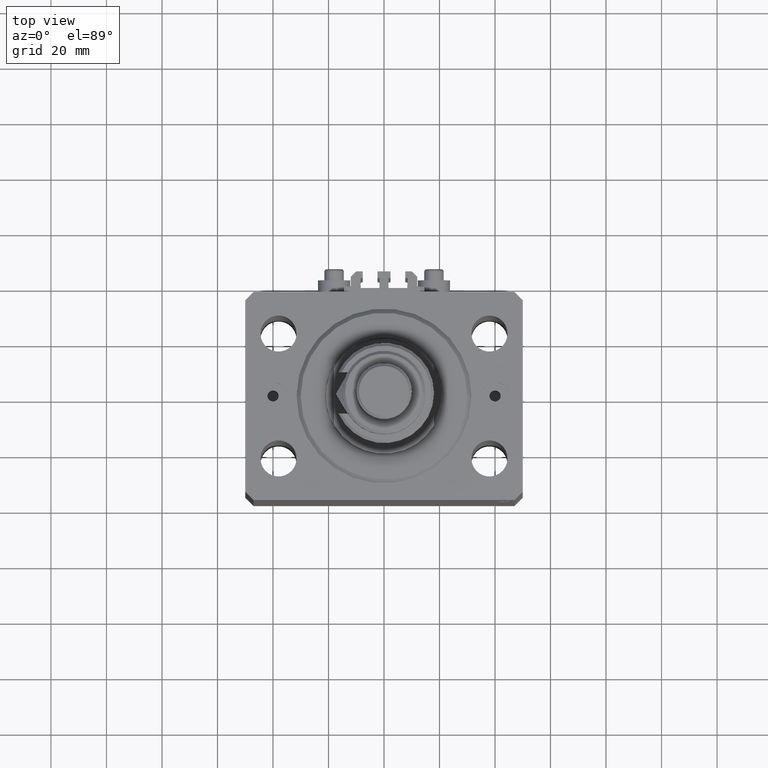
[diagram: clean part render]
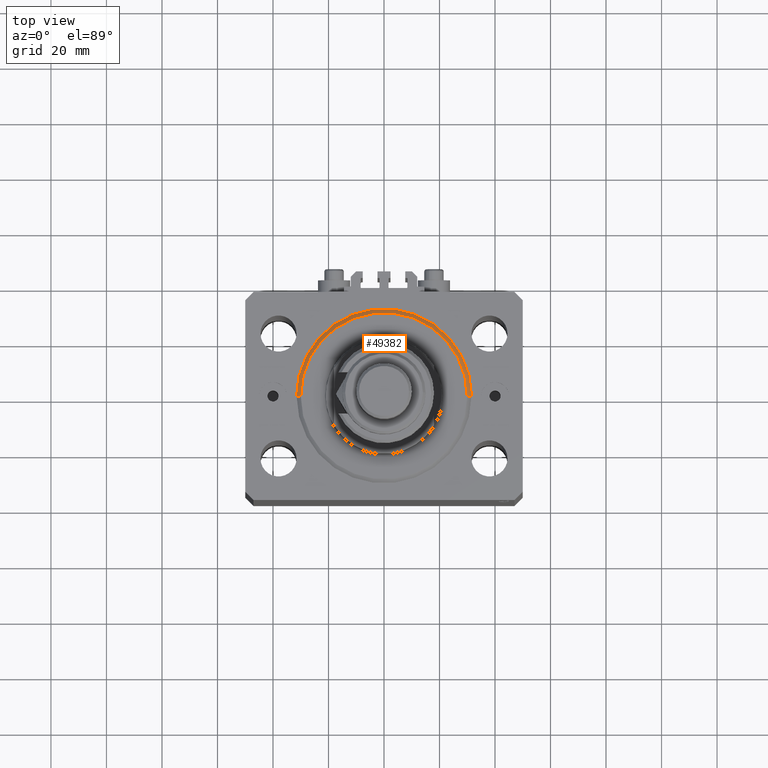
[diagram: same view with one face highlighted and labeled with its STEP entity id]
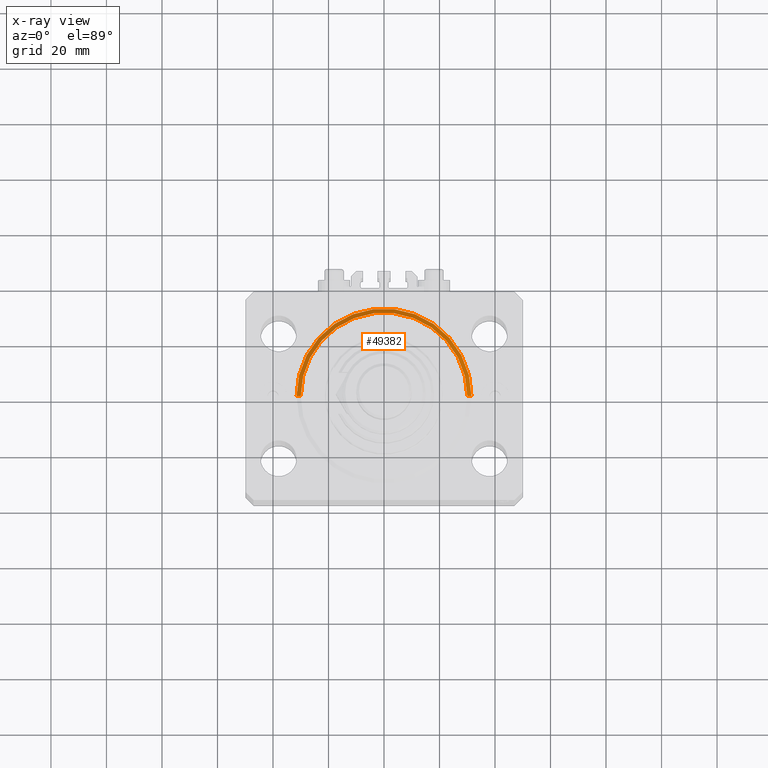
[diagram: x-ray of the same camera — body ghosted, the highlighted face saturated]
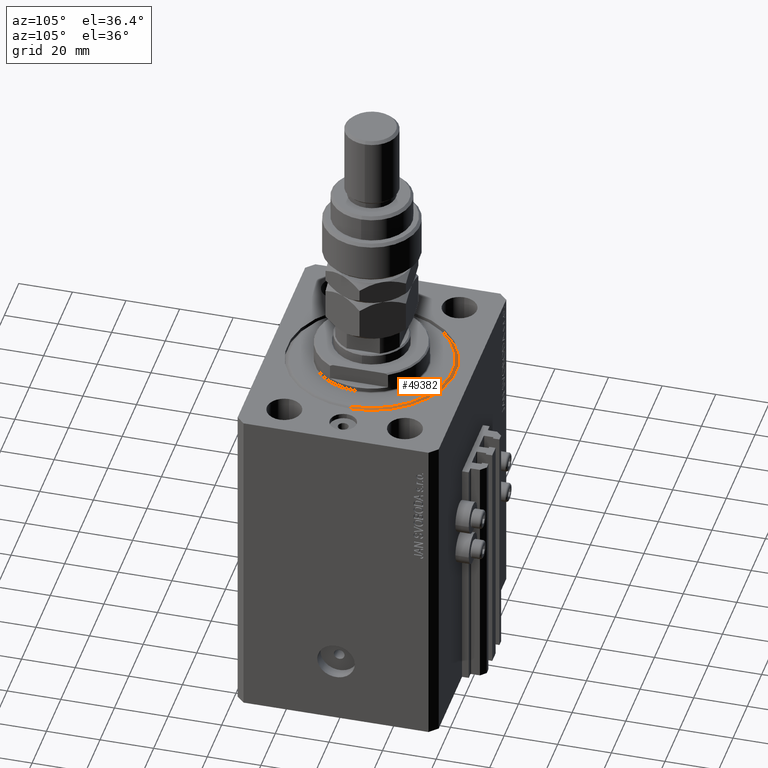
[diagram: same view with one face highlighted and labeled with its STEP entity id]
A machine part, top view. The second image highlights one B-rep face of the part: STEP entity #49382.
The next image is the same camera in x-ray: the body ghosted, the highlighted face saturated — about 0% of this face is hidden behind the body in this view.
A second angle (auxiliary view) of the same face is appended — the face is thin or edge-on in the first view.
In plain terms, the highlighted conical surface has half-angle 45 deg.
Its self-contained STEP definition (entity closure, byte-faithful):
#735 = EDGE_CURVE ( 'NONE', #24171, #11148, #26486, .T. ) ;
#1315 = EDGE_CURVE ( 'NONE', #37425, #13989, #8679, .T. ) ;
#2459 = VECTOR ( 'NONE', #38379, 1000.000000000000114 ) ;
#6969 = ORIENTED_EDGE ( 'NONE', *, *, #8519, .F. ) ;
#7021 = AXIS2_PLACEMENT_3D ( 'NONE', #49305, #15601, #30575 ) ;
#8478 = CARTESIAN_POINT ( 'NONE',  ( -31.50000000000000000, 3.857637417314162689E-15, 1.499999999999980460 ) ) ;
#8519 = EDGE_CURVE ( 'NONE', #13989, #24171, #49776, .T. ) ;
#8679 = CIRCLE ( 'NONE', #26517, 30.00000000000002132 ) ;
#9223 = DIRECTION ( 'NONE',  ( -0.7071067811865474617, 8.659560562354932858E-17, 0.7071067811865474617 ) ) ;
#10091 = CARTESIAN_POINT ( 'NONE',  ( 0.000000000000000000, 0.000000000000000000, 0.000000000000000000 ) ) ;
#11144 = CARTESIAN_POINT ( 'NONE',  ( 0.000000000000000000, 0.000000000000000000, 1.499999999999980460 ) ) ;
#11148 = VERTEX_POINT ( 'NONE', #13039 ) ;
#12297 = ORIENTED_EDGE ( 'NONE', *, *, #1315, .F. ) ;
#13039 = CARTESIAN_POINT ( 'NONE',  ( -31.50000000000000000, 0.000000000000000000, 1.499999999999980460 ) ) ;
#13289 = CARTESIAN_POINT ( 'NONE',  ( 31.50000000000000000, 3.857637417314162689E-15, 1.499999999999980460 ) ) ;
#13989 = VERTEX_POINT ( 'NONE', #44988 ) ;
#15601 = DIRECTION ( 'NONE',  ( -0.000000000000000000, -0.000000000000000000, 1.000000000000000000 ) ) ;
#16725 = ORIENTED_EDGE ( 'NONE', *, *, #735, .F. ) ;
#17957 = DIRECTION ( 'NONE',  ( -0.000000000000000000, -0.000000000000000000, -1.000000000000000000 ) ) ;
#18904 = DIRECTION ( 'NONE',  ( 1.000000000000000000, 0.000000000000000000, 0.000000000000000000 ) ) ;
#22209 = CARTESIAN_POINT ( 'NONE',  ( 31.50000000000000000, 0.000000000000000000, 1.499999999999980460 ) ) ;
#24171 = VERTEX_POINT ( 'NONE', #13289 ) ;
#26230 = CARTESIAN_POINT ( 'NONE',  ( -30.00000000000002132, 3.765788907378112117E-15, 0.000000000000000000 ) ) ;
#26486 = CIRCLE ( 'NONE', #7021, 31.50000000000000000 ) ;
#26517 = AXIS2_PLACEMENT_3D ( 'NONE', #10091, #17957, #18904 ) ;
#26624 = DIRECTION ( 'NONE',  ( -0.000000000000000000, -0.000000000000000000, 1.000000000000000000 ) ) ;
#30575 = DIRECTION ( 'NONE',  ( 1.000000000000000000, 0.000000000000000000, 0.000000000000000000 ) ) ;
#30965 = VECTOR ( 'NONE', #9223, 1000.000000000000114 ) ;
#32766 = ORIENTED_EDGE ( 'NONE', *, *, #37347, .T. ) ;
#36245 = EDGE_LOOP ( 'NONE', ( #12297, #32766, #16725, #6969 ) ) ;
#37347 = EDGE_CURVE ( 'NONE', #37425, #11148, #43423, .T. ) ;
#37425 = VERTEX_POINT ( 'NONE', #26230 ) ;
#38379 = DIRECTION ( 'NONE',  ( 0.7071067811865474617, 0.000000000000000000, 0.7071067811865474617 ) ) ;
#42046 = DIRECTION ( 'NONE',  ( 1.000000000000000000, 0.000000000000000000, 0.000000000000000000 ) ) ;
#43423 = LINE ( 'NONE', #8478, #30965 ) ;
#44988 = CARTESIAN_POINT ( 'NONE',  ( 30.00000000000002132, 0.000000000000000000, 0.000000000000000000 ) ) ;
#45178 = CONICAL_SURFACE ( 'NONE', #47581, 31.50000000000000000, 0.7853981633974482790 ) ;
#45856 = FACE_OUTER_BOUND ( 'NONE', #36245, .T. ) ;
#47581 = AXIS2_PLACEMENT_3D ( 'NONE', #11144, #26624, #42046 ) ;
#49305 = CARTESIAN_POINT ( 'NONE',  ( 0.000000000000000000, 0.000000000000000000, 1.499999999999980460 ) ) ;
#49382 = ADVANCED_FACE ( 'NONE', ( #45856 ), #45178, .T. ) ;
#49776 = LINE ( 'NONE', #22209, #2459 ) ;